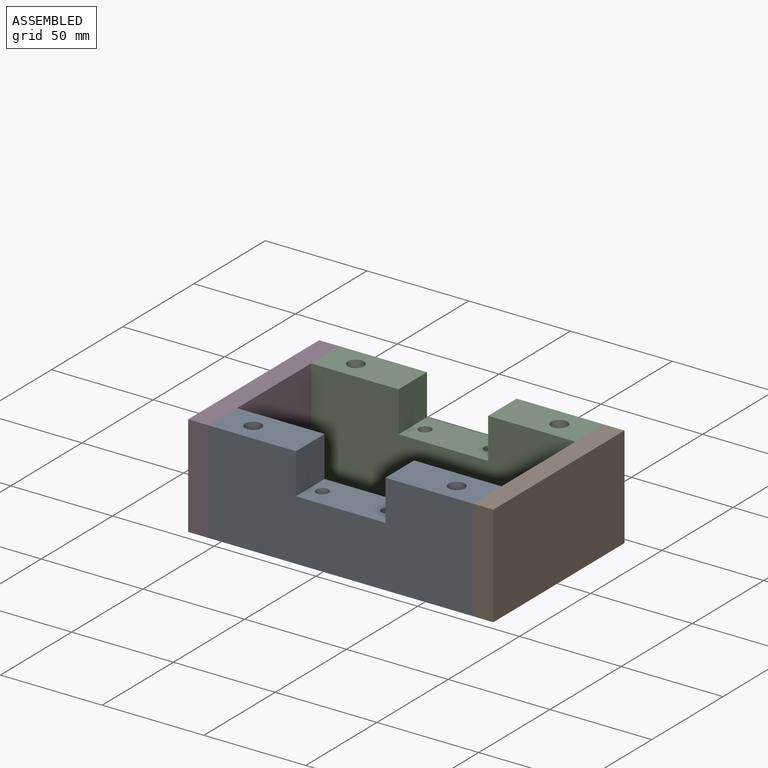
[diagram: assembled view]
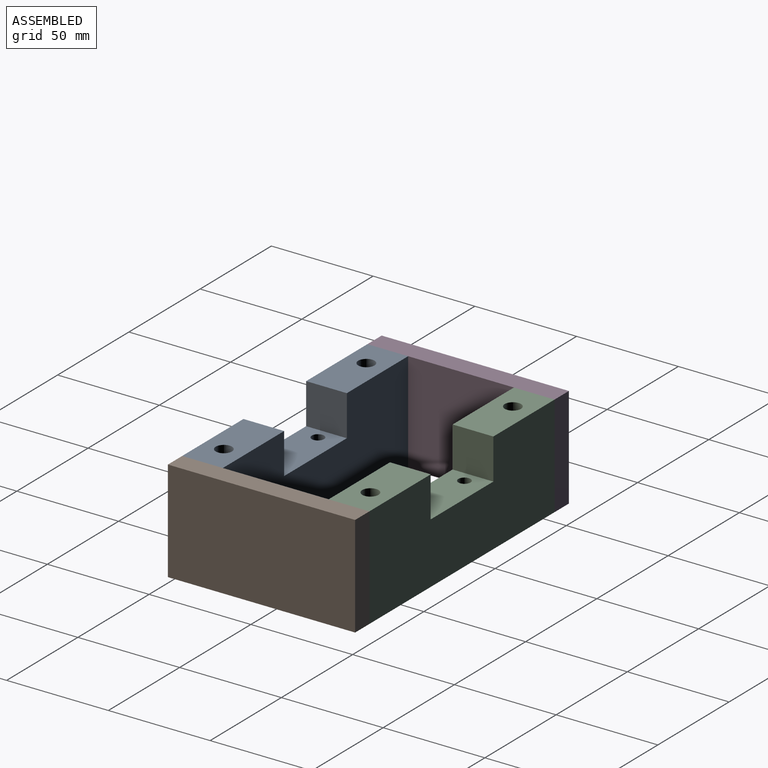
[diagram: assembled view, second angle]
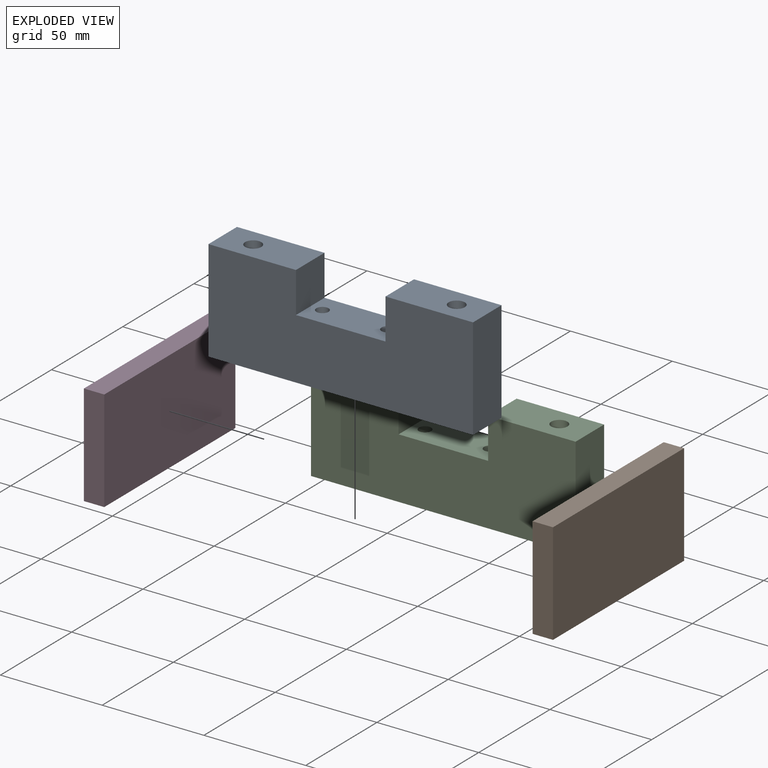
[diagram: exploded view]
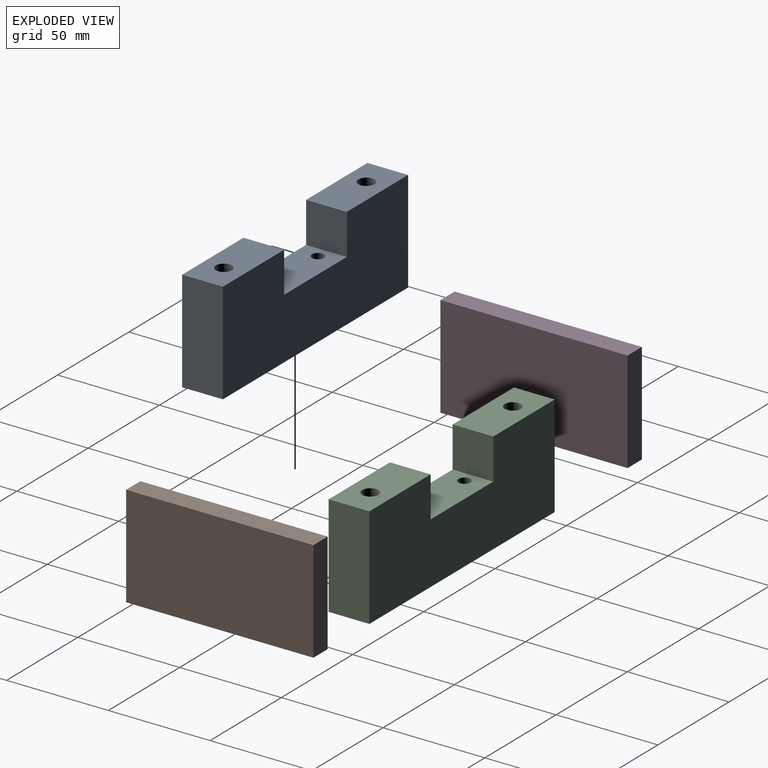
[diagram: exploded view, second angle]
ASSEMBLY  parts=4 mates=3
PART A: 16 faces, bbox 130x20x50 mm
  f0: plane 44x20mm, normal (0,0,1), area 823.5mm2, adj f2,f4,f10,f11,f12,f14
  f1: plane 43x20mm, normal (0,0,1), area 809.7mm2, adj f2,f4,f6,f7,f11
  f2: plane 130x50mm, normal (0,1,0), area 5620mm2, adj f0,f1,f3,f7,f8,f9,f10,f11
  f3: plane 50x20mm, normal (-1,0,0), area 1000mm2, adj f2,f4,f8,f9
  f4: plane 130x50mm, normal (0,-1,0), area 5620mm2, adj f0,f1,f3,f7,f8,f9,f10,f11
  f5: cylinder r=4mm len=50mm, axis (0,0,-1), area 1256.6mm2, adj f8,f9
  f6: cylinder r=4mm len=50mm, axis (0,0,-1), area 1256.6mm2, adj f1,f9
  f7: plane 50x20mm, normal (1,0,0), area 1000mm2, adj f1,f2,f4,f9
  f8: plane 43x20mm, normal (0,0,1), area 809.7mm2, adj f2,f3,f4,f5,f10
  f9: plane 130x20mm, normal (0,0,-1), area 2499.5mm2, adj f2,f3,f4,f5,f6,f7
  f10: plane 20x20mm, normal (1,0,0), area 400mm2, adj f0,f2,f4,f8
  f11: plane 20x20mm, normal (-1,0,0), area 400mm2, adj f0,f1,f2,f4
  f12: cylinder r=3mm len=25mm, axis (0,0,1), area 471.2mm2, adj f0,f13
  f13: plane 6x6mm, normal (0,0,1), area 28.3mm2, adj f12
  f14: cylinder r=3mm len=25mm, axis (0,0,1), area 471.2mm2, adj f0,f15
  f15: plane 6x6mm, normal (0,0,1), area 28.3mm2, adj f14
PART B: 6 faces, bbox 10x92x50 mm
  f0: plane 92x10mm, normal (0,0,1), area 920mm2, adj f1,f3,f4,f5
  f1: plane 50x10mm, normal (0,-1,0), area 500mm2, adj f0,f2,f4,f5
  f2: plane 92x10mm, normal (0,0,-1), area 920mm2, adj f1,f3,f4,f5
  f3: plane 50x10mm, normal (0,1,0), area 500mm2, adj f0,f2,f4,f5
  f4: plane 92x50mm, normal (1,0,0), area 4600mm2, adj f0,f1,f2,f3
  f5: plane 92x50mm, normal (-1,0,0), area 4600mm2, adj f0,f1,f2,f3
PART C: same geometry as A
PART D: same geometry as B
PLACE A t=(62.06,110.2,-104.56)mm
PLACE B t=(127.06,146.2,-79.56)mm
PLACE C t=(62.06,182.2,-104.56)mm
PLACE D t=(-12.94,146.2,-79.56)mm
MATE fastened A.f7 <-> B.f5  axis (1,0,0) through (127.06,100.2,-79.56)mm
MATE fastened B.f5 <-> C.f7  axis (-1,0,0) through (127.06,192.2,-79.56)mm
MATE fastened D.f4 <-> C.f3  axis (1,0,0) through (-2.94,192.2,-79.56)mm
